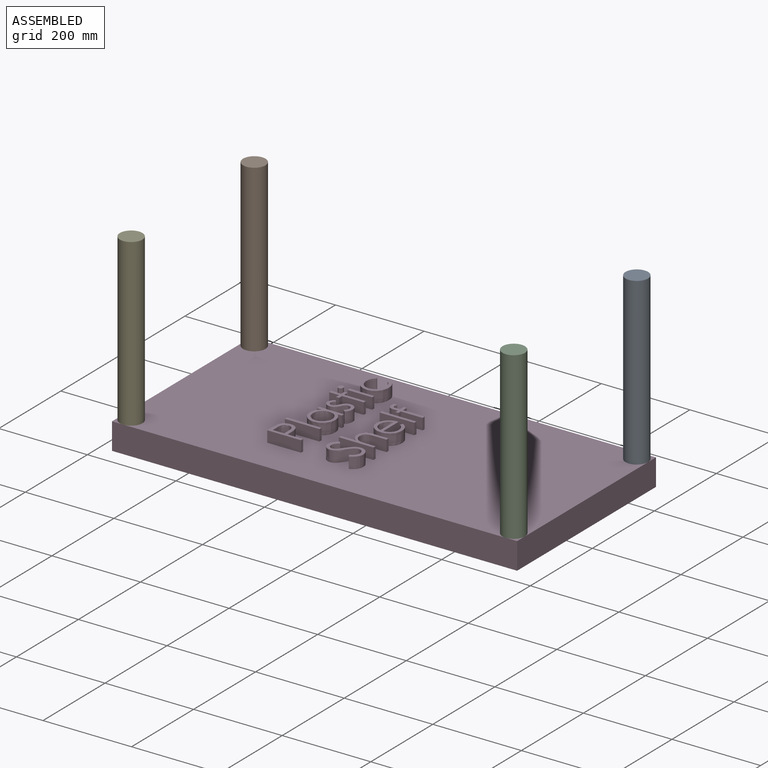
[diagram: assembled view]
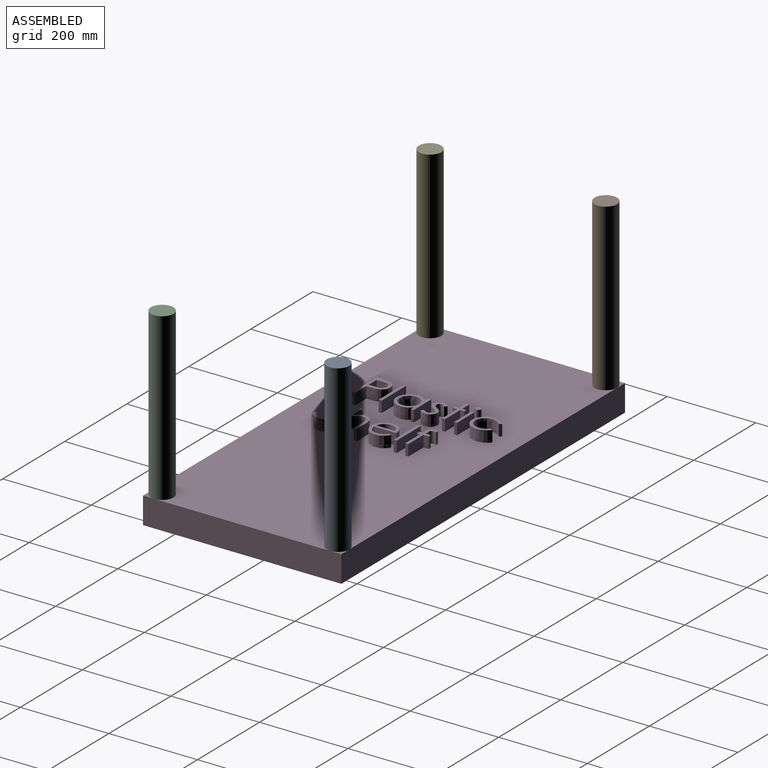
[diagram: assembled view, second angle]
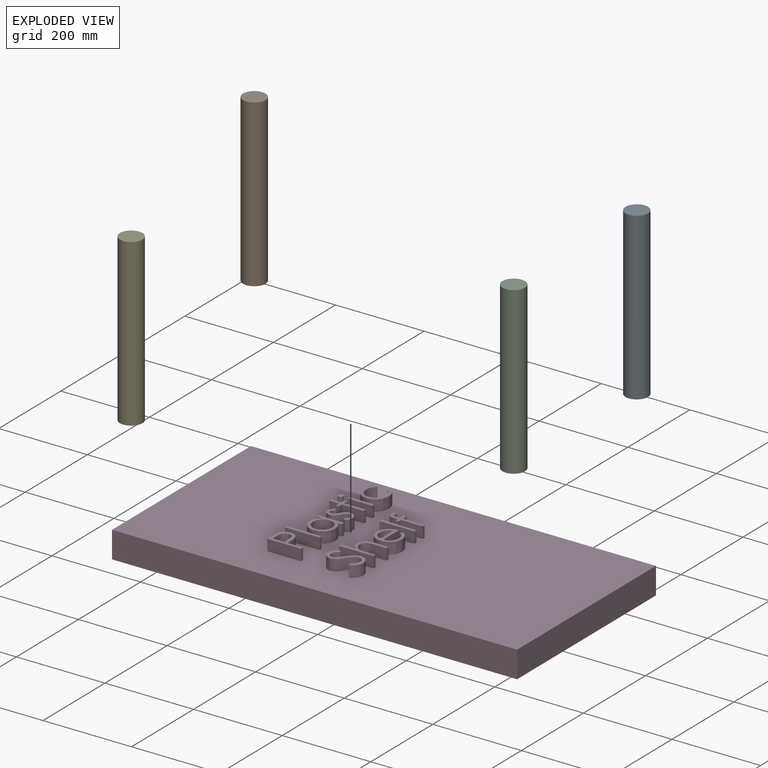
[diagram: exploded view]
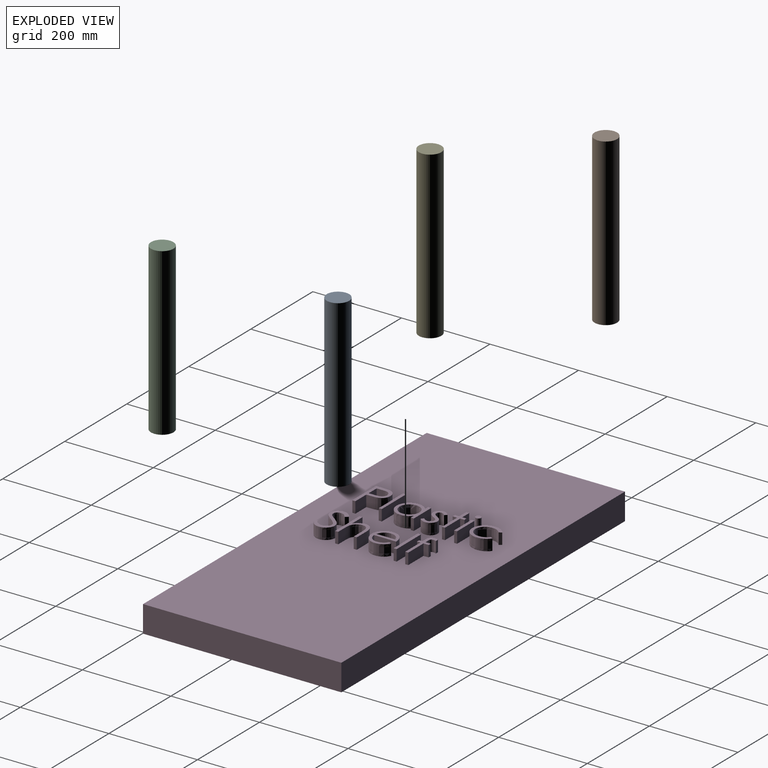
[diagram: exploded view, second angle]
ASSEMBLY  parts=5 mates=4
PART A: 3 faces, bbox 50.8x50.8x374.7 mm
  f0: cylinder r=25.4mm len=374.65mm, axis (0,0,-1), area 59791.5mm2, adj f1,f2
  f1: plane 50.8x50.8mm, normal (0,0,1), area 2026.8mm2, adj f0
  f2: plane 50.8x50.8mm, normal (0,0,-1), area 2026.8mm2, adj f0
PART B: same geometry as A
PART C: same geometry as A
PART D: 166 faces, bbox 914.4x447.7x85.7 mm
  f0: plane 914.4x447.68mm, normal (0,0,1), area 395773.1mm2, adj f1,f2,f3,f4,f7,f8,f9,f10
  f1: plane 914.4x60.33mm, normal (0,-1,0), area 55161.2mm2, adj f0,f2,f4,f5
  f2: plane 447.68x60.33mm, normal (1,0,0), area 27006mm2, adj f0,f1,f3,f5
  f3: plane 914.4x60.33mm, normal (0,1,0), area 55161.2mm2, adj f0,f2,f4,f5
  f4: plane 447.68x60.33mm, normal (-1,0,0), area 27006mm2, adj f0,f1,f3,f5
  f5: plane 914.4x447.68mm, normal (0,0,-1), area 409354mm2, adj f1,f2,f3,f4
  f6: plane 76.2x46.89mm, normal (0,0,1), area 1209.2mm2, adj f7,f8,f9,f10,f11,f12,f13,f14
  f7: plane 76.2x25.4mm, normal (0,-1,0), area 1935.5mm2, adj f0,f6,f8,f15
  f8: plane 25.4x6.84mm, normal (1,0,0), area 173.7mm2, adj f0,f6,f7,f9
  f9: plane 35.17x25.4mm, normal (0,1,0), area 893.3mm2, adj f0,f6,f8,f10
  f10: plane 25.4x5.45mm, normal (1,0,0), area 138.4mm2, adj f0,f6,f9,f11
  f11: extruded ~25.4x19.4mm, area 494.6mm2, adj f0,f6,f10,f12
  f12: extruded ~25.4x19.34mm, area 680.7mm2, adj f0,f6,f11,f13
  f13: extruded ~25.4x19.29mm, area 665.9mm2, adj f0,f6,f12,f14
  f14: extruded ~25.4x17.36mm, area 442.6mm2, adj f0,f6,f13,f15
  f15: plane 25.4x14.94mm, normal (-1,0,0), area 379.6mm2, adj f0,f6,f7,f14
  f16: plane 25.4x13.94mm, normal (1,0,0), area 354mm2, adj f6,f17,f20,f21
  f17: plane 25.4x25.4mm, normal (0,1,0), area 645.2mm2, adj f6,f16,f18,f21
  f18: plane 25.4x13.34mm, normal (-1,0.01,0), area 338.9mm2, adj f6,f17,f19,f21
  f19: extruded ~25.4x19.87mm, area 684.5mm2, adj f6,f18,f20,f21
  f20: extruded ~25.4x19.28mm, area 666.5mm2, adj f6,f16,f19,f21
  f21: plane 33.22x25.57mm, normal (0,0,1), area 769mm2, adj f16,f17,f18,f19,f20
  f22: plane 78.15x25.4mm, normal (0,-1,0), area 1985.1mm2, adj f0,f23,f25,f26
  f23: plane 25.4x6.84mm, normal (1,0,0), area 173.7mm2, adj f0,f22,f24,f26
  f24: plane 78.15x25.4mm, normal (0,1,0), area 1985.1mm2, adj f0,f23,f25,f26
  f25: plane 25.4x6.84mm, normal (-1,0,0), area 173.7mm2, adj f0,f22,f24,f26
  f26: plane 78.15x6.84mm, normal (0,0,1), area 534.5mm2, adj f22,f23,f24,f25
  f27: plane 58.62x57.64mm, normal (0,0,1), area 1305.8mm2, adj f28,f29,f30,f31,f32,f33,f34,f35
  f28: plane 25.4x6.84mm, normal (-1,0,0), area 173.7mm2, adj f0,f27,f29,f36
  f29: plane 25.4x10.3mm, normal (0,-1,0), area 261.7mm2, adj f0,f27,f28,f30
  f30: extruded ~25.4x22.53mm, area 667mm2, adj f0,f27,f29,f31
  f31: extruded ~29.25x28.67mm, area 1156.8mm2, adj f0,f27,f30,f32
  f32: extruded ~29.03x28.97mm, area 1159.7mm2, adj f0,f27,f31,f33
  f33: extruded ~25.4x22.74mm, area 660.2mm2, adj f0,f27,f32,f34
  f34: plane 25.4x9.63mm, normal (0,-1,0), area 244.6mm2, adj f0,f27,f33,f35
  f35: plane 25.4x6.84mm, normal (1,0,0), area 173.7mm2, adj f0,f27,f34,f36
  f36: plane 55.68x25.4mm, normal (0,1,0), area 1414.4mm2, adj f0,f27,f28,f35
  f37: extruded ~25.4x22.44mm, area 893.3mm2, adj f27,f38,f40,f41
  f38: extruded ~25.4x22.5mm, area 886.7mm2, adj f27,f37,f39,f41
  f39: extruded ~25.4x22.44mm, area 886.6mm2, adj f27,f38,f40,f41
  f40: extruded ~25.4x22.5mm, area 889.3mm2, adj f27,f37,f39,f41
  f41: plane 44.94x43.96mm, normal (0,0,1), area 1559.1mm2, adj f37,f38,f39,f40
  f42: extruded ~25.4x14.26mm, area 426.6mm2, adj f0,f43,f59,f60
  f43: extruded ~25.4x14.61mm, area 576.7mm2, adj f0,f42,f44,f60
  f44: extruded ~25.4x8.58mm, area 230.8mm2, adj f0,f43,f45,f60
  f45: extruded ~25.4x9.6mm, area 313.7mm2, adj f0,f44,f46,f60
  f46: extruded ~25.4x8.44mm, area 260.6mm2, adj f0,f45,f47,f60
  f47: extruded ~25.4x5.31mm, area 146mm2, adj f0,f46,f48,f60
  f48: extruded ~25.4x9.83mm, area 375mm2, adj f0,f47,f49,f60
  f49: extruded ~25.4x11.04mm, area 327.4mm2, adj f0,f48,f50,f60
  f50: plane 25.4x5.16mm, normal (-0.66,-0.75,0), area 174.5mm2, adj f0,f49,f51,f60
  f51: extruded ~25.4x15.92mm, area 462.8mm2, adj f0,f50,f52,f60
  f52: extruded ~25.4x16.32mm, area 649.7mm2, adj f0,f51,f53,f60
  f53: extruded ~25.4x8.61mm, area 231.9mm2, adj f0,f52,f54,f60
  f54: extruded ~25.4x10.03mm, area 325.5mm2, adj f0,f53,f55,f60
  f55: extruded ~25.4x7.95mm, area 250.6mm2, adj f0,f54,f56,f60
  f56: extruded ~25.4x5.05mm, area 139.6mm2, adj f0,f55,f57,f60
  f57: extruded ~25.4x7.5mm, area 293.4mm2, adj f0,f56,f58,f60
  f58: extruded ~25.4x9.62mm, area 295.2mm2, adj f0,f57,f59,f60
  f59: plane 25.4x4.78mm, normal (0.7,0.72,0), area 169.2mm2, adj f0,f42,f58,f60
  f60: plane 57.64x32.24mm, normal (0,0,1), area 725mm2, adj f42,f43,f44,f45,f46,f47,f48,f49
  f61: plane 25.4x22.47mm, normal (0,-1,0), area 570.7mm2, adj f0,f62,f72,f73
  f62: plane 25.4x9.77mm, normal (-1,0,0), area 248.1mm2, adj f0,f61,f63,f73
  f63: plane 25.4x6.84mm, normal (0,-1,0), area 173.7mm2, adj f0,f62,f64,f73
  f64: plane 25.4x9.77mm, normal (1,0,0), area 248.1mm2, adj f0,f63,f65,f73
  f65: plane 48.85x25.4mm, normal (0,-1,0), area 1240.7mm2, adj f0,f64,f66,f73
  f66: plane 25.4x6.84mm, normal (1,0,0), area 173.7mm2, adj f0,f65,f67,f73
  f67: plane 48.85x25.4mm, normal (0,1,0), area 1240.7mm2, adj f0,f66,f68,f73
  f68: plane 25.4x9.77mm, normal (1,0,0), area 248.1mm2, adj f0,f67,f69,f73
  f69: plane 25.4x6.84mm, normal (0,1,0), area 173.7mm2, adj f0,f68,f70,f73
  f70: plane 25.4x9.77mm, normal (-1,0,0), area 248.1mm2, adj f0,f69,f71,f73
  f71: plane 25.4x22.47mm, normal (0,1,0), area 570.7mm2, adj f0,f70,f72,f73
  f72: plane 25.4x6.84mm, normal (-1,0,0), area 173.7mm2, adj f0,f61,f71,f73
  f73: plane 78.15x26.38mm, normal (0,0,1), area 668.1mm2, adj f61,f62,f63,f64,f65,f66,f67,f68
  f74: extruded ~25.4x6.32mm, area 243.8mm2, adj f0,f75,f77,f78
  f75: extruded ~25.4x6.32mm, area 242.3mm2, adj f0,f74,f76,f78
  f76: extruded ~25.4x6.38mm, area 243.7mm2, adj f0,f75,f77,f78
  f77: extruded ~25.4x6.38mm, area 245.2mm2, adj f0,f74,f76,f78
  f78: plane 12.7x11.72mm, normal (0,0,1), area 117mm2, adj f74,f75,f76,f77
  f79: plane 55.68x25.4mm, normal (0,-1,0), area 1414.4mm2, adj f0,f80,f82,f83
  f80: plane 25.4x6.84mm, normal (1,0,0), area 173.7mm2, adj f0,f79,f81,f83
  f81: plane 55.68x25.4mm, normal (0,1,0), area 1414.4mm2, adj f0,f80,f82,f83
  f82: plane 25.4x6.84mm, normal (-1,0,0), area 173.7mm2, adj f0,f79,f81,f83
  f83: plane 55.68x6.84mm, normal (0,0,1), area 380.8mm2, adj f79,f80,f81,f82
  f84: extruded ~25.49x25.4mm, area 761.2mm2, adj f0,f85,f93,f94
  f85: extruded ~31.17x29.28mm, area 1212.1mm2, adj f0,f84,f86,f94
  f86: extruded ~30.61x28.36mm, area 1183mm2, adj f0,f85,f87,f94
  f87: extruded ~26.06x25.4mm, area 770.3mm2, adj f0,f86,f88,f94
  f88: plane 25.4x5.72mm, normal (-0.84,0.55,0), area 173.9mm2, adj f0,f87,f89,f94
  f89: extruded ~25.4x20.23mm, area 591.6mm2, adj f0,f88,f90,f94
  f90: extruded ~25.4x23.87mm, area 922.4mm2, adj f0,f89,f91,f94
  f91: extruded ~25.4x23.83mm, area 915.8mm2, adj f0,f90,f92,f94
  f92: extruded ~25.4x20.27mm, area 594.1mm2, adj f0,f91,f93,f94
  f93: plane 25.4x5.72mm, normal (0.85,0.53,0), area 171.2mm2, adj f0,f84,f92,f94
  f94: plane 57.64x56.66mm, normal (0,0,1), area 944.4mm2, adj f84,f85,f86,f87,f88,f89,f90,f91
  f95: extruded ~25.4x23.17mm, area 766.5mm2, adj f0,f96,f111,f112
  f96: extruded ~25.4x21.77mm, area 846.2mm2, adj f0,f95,f97,f112
  f97: extruded ~25.4x24.59mm, area 804mm2, adj f0,f96,f98,f112
  f98: extruded ~25.4x10.24mm, area 323.9mm2, adj f0,f97,f99,f112
  f99: extruded ~25.4x9.85mm, area 289.6mm2, adj f0,f98,f100,f112
  f100: extruded ~25.4x11.17mm, area 419mm2, adj f0,f99,f101,f112
  f101: extruded ~25.4x14.88mm, area 471.2mm2, adj f0,f100,f102,f112
  f102: plane 25.4x6.18mm, normal (0.8,0.6,0), area 197mm2, adj f0,f101,f103,f112
  f103: extruded ~25.4x20.3mm, area 637.8mm2, adj f0,f102,f104,f112
  f104: extruded ~25.4x18.78mm, area 733.1mm2, adj f0,f103,f105,f112
  f105: extruded ~25.4x11.6mm, area 320.1mm2, adj f0,f104,f106,f112
  f106: extruded ~25.4x12.49mm, area 413.2mm2, adj f0,f105,f107,f112
  f107: extruded ~25.4x13.74mm, area 467.5mm2, adj f0,f106,f108,f112
  f108: extruded ~25.4x7.48mm, area 205.8mm2, adj f0,f107,f109,f112
  f109: extruded ~25.4x14.93mm, area 557.7mm2, adj f0,f108,f110,f112
  f110: extruded ~25.4x16.73mm, area 559.9mm2, adj f0,f109,f111,f112
  f111: plane 25.4x6.44mm, normal (-0.86,-0.51,0), area 190.8mm2, adj f0,f95,f110,f112
  f112: plane 80.11x44.94mm, normal (0,0,1), area 1131.3mm2, adj f95,f96,f97,f98,f99,f100,f101,f102
  f113: plane 78.15x25.4mm, normal (0,-1,0), area 1985.1mm2, adj f0,f114,f126,f127
  f114: plane 25.4x6.84mm, normal (1,0,0), area 173.7mm2, adj f0,f113,f115,f127
  f115: plane 25.4x20.13mm, normal (0,1,0), area 511.4mm2, adj f0,f114,f116,f127
  f116: extruded ~25.4x14.94mm, area 381.3mm2, adj f0,f115,f117,f127
  f117: extruded ~25.4x18.93mm, area 654.7mm2, adj f0,f116,f118,f127
  f118: extruded ~25.4x14.39mm, area 502.7mm2, adj f0,f117,f119,f127
  f119: extruded ~25.4x12.67mm, area 323mm2, adj f0,f118,f120,f127
  f120: plane 26.19x25.4mm, normal (0,-1,0), area 665.3mm2, adj f0,f119,f121,f127
  f121: plane 25.4x6.84mm, normal (1,0,0), area 173.7mm2, adj f0,f120,f122,f127
  f122: plane 28.44x25.4mm, normal (0,1,0), area 722.3mm2, adj f0,f121,f123,f127
  f123: extruded ~28.22x25.4mm, area 1016.8mm2, adj f0,f122,f124,f127
  f124: extruded ~25.4x21.19mm, area 636mm2, adj f0,f123,f125,f127
  f125: plane 32.99x25.4mm, normal (0,1,0), area 837.9mm2, adj f0,f124,f126,f127
  f126: plane 25.4x6.84mm, normal (-1,0,0), area 173.7mm2, adj f0,f113,f125,f127
  f127: plane 78.15x48.85mm, normal (0,0,1), area 1132.6mm2, adj f113,f114,f115,f116,f117,f118,f119,f120
  f128: plane 57.64x56.66mm, normal (0,0,1), area 1296.2mm2, adj f129,f130,f131,f132,f133,f134,f135,f136
  f129: extruded ~25.4x20.5mm, area 629.6mm2, adj f0,f128,f130,f138
  f130: extruded ~25.4x20.52mm, area 818.3mm2, adj f0,f128,f129,f131
  f131: plane 49.82x25.4mm, normal (1,0,0), area 1265.5mm2, adj f0,f128,f130,f132
  f132: extruded ~25.4x19.32mm, area 523.8mm2, adj f0,f128,f131,f133
  f133: extruded ~25.4x22.42mm, area 658.9mm2, adj f0,f128,f132,f134
  f134: extruded ~25.4x21.77mm, area 635.9mm2, adj f0,f128,f133,f135
  f135: extruded ~25.4x18.59mm, area 509.3mm2, adj f0,f128,f134,f136
  f136: extruded ~28.67x28.01mm, area 1139mm2, adj f0,f128,f135,f137
  f137: extruded ~25.72x25.4mm, area 804.3mm2, adj f0,f128,f136,f138
  f138: plane 25.4x6.08mm, normal (-0.89,0.46,0), area 174.3mm2, adj f0,f128,f129,f137
  f139: plane 42.27x25.4mm, normal (-1,0,0), area 1073.6mm2, adj f128,f140,f142,f143
  f140: extruded ~25.4x21.29mm, area 744.7mm2, adj f128,f139,f141,f143
  f141: extruded ~25.4x14.35mm, area 396.7mm2, adj f128,f140,f142,f143
  f142: extruded ~25.4x11.39mm, area 339.2mm2, adj f128,f139,f141,f143
  f143: plane 42.27x16.61mm, normal (0,0,1), area 528.6mm2, adj f139,f140,f141,f142
  f144: plane 78.15x25.4mm, normal (0,-1,0), area 1985.1mm2, adj f0,f145,f147,f148
  f145: plane 25.4x6.84mm, normal (1,0,0), area 173.7mm2, adj f0,f144,f146,f148
  f146: plane 78.15x25.4mm, normal (0,1,0), area 1985.1mm2, adj f0,f145,f147,f148
  f147: plane 25.4x6.84mm, normal (-1,0,0), area 173.7mm2, adj f0,f144,f146,f148
  f148: plane 78.15x6.84mm, normal (0,0,1), area 534.5mm2, adj f144,f145,f146,f147
  f149: extruded ~25.4x8.33mm, area 215.5mm2, adj f0,f150,f164,f165
  f150: extruded ~25.4x14.55mm, area 539.3mm2, adj f0,f149,f151,f165
  f151: plane 25.4x8.9mm, normal (0,-1,0), area 226mm2, adj f0,f150,f152,f165
  f152: plane 25.4x7.82mm, normal (-1,0,0), area 198.5mm2, adj f0,f151,f153,f165
  f153: plane 25.4x6.84mm, normal (0,-1,0), area 173.7mm2, adj f0,f152,f154,f165
  f154: plane 25.4x7.82mm, normal (1,0,0), area 198.5mm2, adj f0,f153,f155,f165
  f155: plane 48.85x25.4mm, normal (0,-1,0), area 1240.7mm2, adj f0,f154,f156,f165
  f156: plane 25.4x6.84mm, normal (1,0,0), area 173.7mm2, adj f0,f155,f157,f165
  f157: plane 48.85x25.4mm, normal (0,1,0), area 1240.7mm2, adj f0,f156,f158,f165
  f158: plane 25.4x11.69mm, normal (1,0,0), area 297mm2, adj f0,f157,f159,f165
  f159: plane 25.4x6.84mm, normal (0,1,0), area 173.7mm2, adj f0,f158,f160,f165
  f160: plane 25.4x11.68mm, normal (-1,0,0), area 296.6mm2, adj f0,f159,f161,f165
  f161: plane 25.4x7.72mm, normal (0,1,0), area 196.2mm2, adj f0,f160,f162,f165
  f162: extruded ~25.4x8.88mm, area 317.5mm2, adj f0,f161,f163,f165
  f163: extruded ~25.4x6.93mm, area 182.4mm2, adj f0,f162,f164,f165
  f164: plane 25.4x7.11mm, normal (0,1,0), area 180.7mm2, adj f0,f149,f163,f165
  f165: plane 79.13x27.35mm, normal (0,0,1), area 744.3mm2, adj f149,f150,f151,f152,f153,f154,f155,f156
PART E: same geometry as A
PLACE A t=(-3648.98,-860.57,2438.18)mm
PLACE B t=(-4512.58,-860.57,2438.18)mm
PLACE C t=(-3648.98,-1257.45,2438.18)mm
PLACE D t=(-3648.98,-1257.45,2438.18)mm
PLACE E t=(-4512.58,-1257.45,2438.18)mm
MATE fastened E.f0 <-> D.f0  axis (0,0,-1) through (146.09,247.13,185.34)mm
MATE fastened C.f0 <-> D.f0  axis (0,0,-1) through (1009.69,247.13,185.34)mm
MATE fastened A.f0 <-> D.f0  axis (0,0,-1) through (1009.69,644,185.34)mm
MATE fastened B.f0 <-> D.f0  axis (0,0,-1) through (146.09,644,185.34)mm
